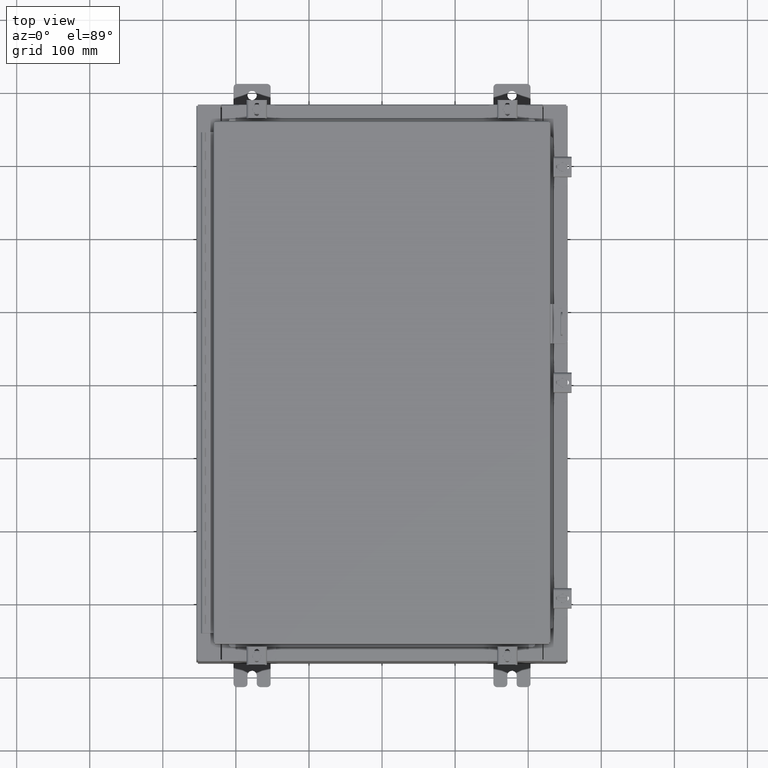
[diagram: clean part render]
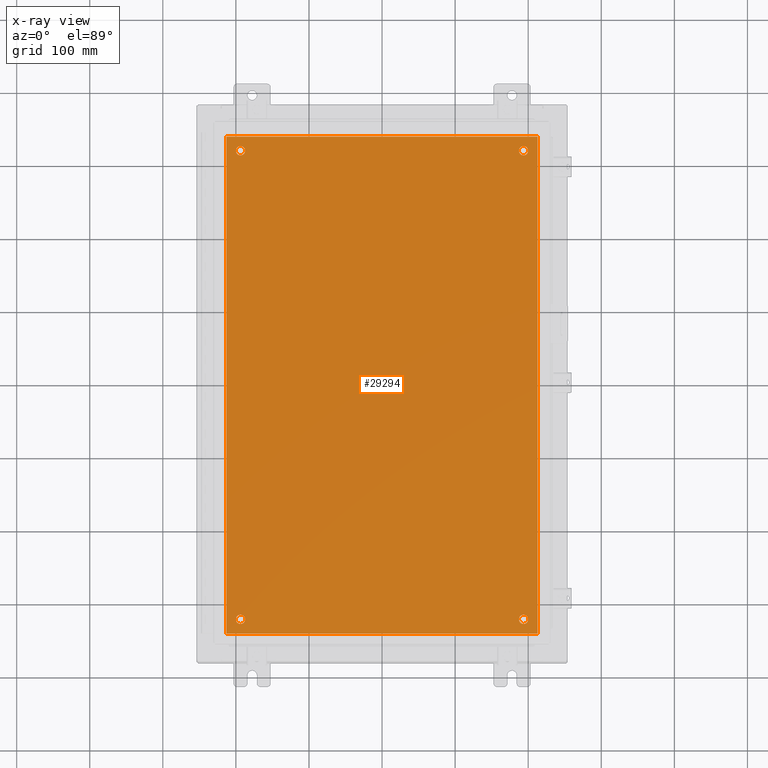
[diagram: x-ray — body ghosted, one internal face saturated and labeled with its STEP entity id]
A machine part, top view, then the same camera in x-ray: the body is ghosted and one INTERNAL B-rep face — a face not visible from any outside direction — is saturated and labeled: STEP entity #29294.
In plain terms, the highlighted planar face has unit normal (0, 0, -1).
Its self-contained STEP definition (entity closure, byte-faithful):
#529 = AXIS2_PLACEMENT_3D ( 'NONE', #18171, #18162, #18082 ) ;
#673 = DIRECTION ( 'NONE',  ( -1.000000000000000000, 0.0000000000000000000, -0.0000000000000000000 ) ) ;
#690 = EDGE_CURVE ( 'NONE', #12783, #30002, #31146, .T. ) ;
#717 = DIRECTION ( 'NONE',  ( 0.0000000000000000000, 0.0000000000000000000, -1.000000000000000000 ) ) ;
#759 = PLANE ( 'NONE',  #5560 ) ;
#770 = CARTESIAN_POINT ( 'NONE',  ( 0.0000000000000000000, 0.0000000000000000000, -0.1039999999999999800 ) ) ;
#806 = AXIS2_PLACEMENT_3D ( 'NONE', #29410, #17889, #17842 ) ;
#902 = EDGE_LOOP ( 'NONE', ( #34099, #13166 ) ) ;
#1223 = VERTEX_POINT ( 'NONE', #36866 ) ;
#1288 = CARTESIAN_POINT ( 'NONE',  ( 7.875000000000001800, 12.62500000000000200, -0.1039999999999999800 ) ) ;
#1823 = CARTESIAN_POINT ( 'NONE',  ( 7.875000000000001800, -12.62500000000000200, -0.1039999999999999800 ) ) ;
#1919 = CIRCLE ( 'NONE', #806, 0.2499999999999987000 ) ;
#1987 = EDGE_LOOP ( 'NONE', ( #2443, #22262, #36931, #14598 ) ) ;
#2052 = EDGE_CURVE ( 'NONE', #27027, #2546, #3927, .T. ) ;
#2219 = AXIS2_PLACEMENT_3D ( 'NONE', #3190, #3322, #3439 ) ;
#2351 = CARTESIAN_POINT ( 'NONE',  ( -7.375000000000003600, 12.62500000000000200, -0.1039999999999999800 ) ) ;
#2443 = ORIENTED_EDGE ( 'NONE', *, *, #20037, .F. ) ;
#2546 = VERTEX_POINT ( 'NONE', #2351 ) ;
#2873 = VERTEX_POINT ( 'NONE', #32726 ) ;
#3190 = CARTESIAN_POINT ( 'NONE',  ( -7.625000000000002700, -12.62500000000000200, -0.1039999999999999800 ) ) ;
#3322 = DIRECTION ( 'NONE',  ( -0.0000000000000000000, -0.0000000000000000000, 1.000000000000000000 ) ) ;
#3439 = DIRECTION ( 'NONE',  ( -1.000000000000000000, 0.0000000000000000000, 0.0000000000000000000 ) ) ;
#3673 = ORIENTED_EDGE ( 'NONE', *, *, #690, .T. ) ;
#3927 = CIRCLE ( 'NONE', #529, 0.2499999999999998100 ) ;
#4083 = FACE_BOUND ( 'NONE', #6073, .T. ) ;
#4132 = ORIENTED_EDGE ( 'NONE', *, *, #33070, .T. ) ;
#5560 = AXIS2_PLACEMENT_3D ( 'NONE', #770, #717, #673 ) ;
#5797 = CIRCLE ( 'NONE', #20526, 0.2499999999999987000 ) ;
#6073 = EDGE_LOOP ( 'NONE', ( #29422, #9054 ) ) ;
#6400 = LINE ( 'NONE', #15677, #37238 ) ;
#6557 = EDGE_CURVE ( 'NONE', #20621, #11350, #1919, .T. ) ;
#6643 = VERTEX_POINT ( 'NONE', #13054 ) ;
#7862 = CIRCLE ( 'NONE', #27215, 0.2499999999999987000 ) ;
#8423 = LINE ( 'NONE', #21989, #30608 ) ;
#9054 = ORIENTED_EDGE ( 'NONE', *, *, #6557, .T. ) ;
#10673 = AXIS2_PLACEMENT_3D ( 'NONE', #35686, #35418, #35340 ) ;
#10768 = FACE_BOUND ( 'NONE', #902, .T. ) ;
#11219 = DIRECTION ( 'NONE',  ( -1.000000000000000000, 0.0000000000000000000, 0.0000000000000000000 ) ) ;
#11249 = DIRECTION ( 'NONE',  ( -0.0000000000000000000, -0.0000000000000000000, 1.000000000000000000 ) ) ;
#11255 = CARTESIAN_POINT ( 'NONE',  ( -7.625000000000002700, -12.62500000000000200, -0.1039999999999999800 ) ) ;
#11350 = VERTEX_POINT ( 'NONE', #1823 ) ;
#11370 = VERTEX_POINT ( 'NONE', #1288 ) ;
#12607 = ORIENTED_EDGE ( 'NONE', *, *, #13303, .T. ) ;
#12783 = VERTEX_POINT ( 'NONE', #23053 ) ;
#13054 = CARTESIAN_POINT ( 'NONE',  ( -8.383000000000000900, -13.38299999999999400, -0.1040000000000009100 ) ) ;
#13166 = ORIENTED_EDGE ( 'NONE', *, *, #2052, .T. ) ;
#13303 = EDGE_CURVE ( 'NONE', #30002, #12783, #33866, .T. ) ;
#13989 = DIRECTION ( 'NONE',  ( -1.000000000000000000, -0.0000000000000000000, -0.0000000000000000000 ) ) ;
#14598 = ORIENTED_EDGE ( 'NONE', *, *, #28502, .F. ) ;
#15548 = DIRECTION ( 'NONE',  ( 0.0000000000000000000, 1.000000000000000000, 0.0000000000000000000 ) ) ;
#15677 = CARTESIAN_POINT ( 'NONE',  ( 8.383000000000002700, -13.38299999999999200, -0.1039999999999992700 ) ) ;
#16322 = CARTESIAN_POINT ( 'NONE',  ( -7.875000000000002700, 12.62500000000000200, -0.1039999999999999800 ) ) ;
#16354 = DIRECTION ( 'NONE',  ( -1.000000000000000000, 0.0000000000000000000, 0.0000000000000000000 ) ) ;
#16411 = LINE ( 'NONE', #22279, #22334 ) ;
#17842 = DIRECTION ( 'NONE',  ( -1.000000000000000000, 0.0000000000000000000, 0.0000000000000000000 ) ) ;
#17889 = DIRECTION ( 'NONE',  ( -0.0000000000000000000, -0.0000000000000000000, 1.000000000000000000 ) ) ;
#18045 = EDGE_CURVE ( 'NONE', #2546, #27027, #32996, .T. ) ;
#18082 = DIRECTION ( 'NONE',  ( -1.000000000000000000, 0.0000000000000000000, 0.0000000000000000000 ) ) ;
#18162 = DIRECTION ( 'NONE',  ( -0.0000000000000000000, -0.0000000000000000000, 1.000000000000000000 ) ) ;
#18171 = CARTESIAN_POINT ( 'NONE',  ( -7.625000000000002700, 12.62500000000000200, -0.1039999999999999800 ) ) ;
#18249 = VERTEX_POINT ( 'NONE', #20832 ) ;
#18486 = FACE_BOUND ( 'NONE', #24531, .T. ) ;
#18730 = CARTESIAN_POINT ( 'NONE',  ( -7.375000000000003600, -12.62500000000000200, -0.1039999999999999800 ) ) ;
#19379 = FACE_OUTER_BOUND ( 'NONE', #1987, .T. ) ;
#20037 = EDGE_CURVE ( 'NONE', #6643, #21629, #16411, .T. ) ;
#20526 = AXIS2_PLACEMENT_3D ( 'NONE', #33838, #36781, #16354 ) ;
#20621 = VERTEX_POINT ( 'NONE', #32587 ) ;
#20832 = CARTESIAN_POINT ( 'NONE',  ( 8.383000000000002700, 13.38300000000000100, -0.1039999999999992700 ) ) ;
#21629 = VERTEX_POINT ( 'NONE', #27639 ) ;
#21989 = CARTESIAN_POINT ( 'NONE',  ( -8.383000000000000900, 13.38300000000000100, -0.1039999999999998300 ) ) ;
#22262 = ORIENTED_EDGE ( 'NONE', *, *, #34696, .F. ) ;
#22279 = CARTESIAN_POINT ( 'NONE',  ( -8.500000000000000000, -13.38299999999999400, -0.1040000000000009100 ) ) ;
#22334 = VECTOR ( 'NONE', #25757, 39.37007874015748100 ) ;
#23053 = CARTESIAN_POINT ( 'NONE',  ( -7.875000000000002700, -12.62500000000000200, -0.1039999999999999800 ) ) ;
#24261 = DIRECTION ( 'NONE',  ( -1.000000000000000000, 0.0000000000000000000, 0.0000000000000000000 ) ) ;
#24305 = DIRECTION ( 'NONE',  ( -0.0000000000000000000, -0.0000000000000000000, 1.000000000000000000 ) ) ;
#24358 = CARTESIAN_POINT ( 'NONE',  ( -7.625000000000002700, 12.62500000000000200, -0.1039999999999999800 ) ) ;
#24531 = EDGE_LOOP ( 'NONE', ( #4132, #26353 ) ) ;
#24564 = VECTOR ( 'NONE', #13989, 39.37007874015748100 ) ;
#25535 = DIRECTION ( 'NONE',  ( -1.000000000000000000, 0.0000000000000000000, 0.0000000000000000000 ) ) ;
#25569 = DIRECTION ( 'NONE',  ( -0.0000000000000000000, -0.0000000000000000000, 1.000000000000000000 ) ) ;
#25613 = CARTESIAN_POINT ( 'NONE',  ( 7.625000000000002700, 12.62500000000000200, -0.1039999999999999800 ) ) ;
#25757 = DIRECTION ( 'NONE',  ( 1.000000000000000000, -0.0000000000000000000, -0.0000000000000000000 ) ) ;
#25975 = AXIS2_PLACEMENT_3D ( 'NONE', #24358, #24305, #24261 ) ;
#26190 = FACE_BOUND ( 'NONE', #27450, .T. ) ;
#26213 = EDGE_CURVE ( 'NONE', #18249, #2873, #32314, .T. ) ;
#26353 = ORIENTED_EDGE ( 'NONE', *, *, #37422, .T. ) ;
#26626 = EDGE_CURVE ( 'NONE', #11350, #20621, #27263, .T. ) ;
#27027 = VERTEX_POINT ( 'NONE', #16322 ) ;
#27215 = AXIS2_PLACEMENT_3D ( 'NONE', #25613, #25569, #25535 ) ;
#27263 = CIRCLE ( 'NONE', #10673, 0.2499999999999987000 ) ;
#27450 = EDGE_LOOP ( 'NONE', ( #12607, #3673 ) ) ;
#27639 = CARTESIAN_POINT ( 'NONE',  ( 8.383000000000002700, -13.38299999999999200, -0.1039999999999992700 ) ) ;
#28502 = EDGE_CURVE ( 'NONE', #21629, #18249, #6400, .T. ) ;
#29294 = ADVANCED_FACE ( 'NONE', ( #26190, #4083, #18486, #10768, #19379 ), #759, .T. ) ;
#29410 = CARTESIAN_POINT ( 'NONE',  ( 7.625000000000002700, -12.62500000000000200, -0.1039999999999999800 ) ) ;
#29422 = ORIENTED_EDGE ( 'NONE', *, *, #26626, .T. ) ;
#30002 = VERTEX_POINT ( 'NONE', #18730 ) ;
#30079 = CARTESIAN_POINT ( 'NONE',  ( 8.500000000000001800, 13.38300000000000300, -0.1040000000000009100 ) ) ;
#30608 = VECTOR ( 'NONE', #33738, 39.37007874015748100 ) ;
#31146 = CIRCLE ( 'NONE', #2219, 0.2499999999999998100 ) ;
#32314 = LINE ( 'NONE', #30079, #24564 ) ;
#32587 = CARTESIAN_POINT ( 'NONE',  ( 7.375000000000004400, -12.62500000000000200, -0.1039999999999999800 ) ) ;
#32726 = CARTESIAN_POINT ( 'NONE',  ( -8.383000000000000900, 13.38300000000000100, -0.1039999999999998300 ) ) ;
#32996 = CIRCLE ( 'NONE', #25975, 0.2499999999999998100 ) ;
#33070 = EDGE_CURVE ( 'NONE', #11370, #1223, #7862, .T. ) ;
#33738 = DIRECTION ( 'NONE',  ( 0.0000000000000000000, -1.000000000000000000, 0.0000000000000000000 ) ) ;
#33838 = CARTESIAN_POINT ( 'NONE',  ( 7.625000000000002700, 12.62500000000000200, -0.1039999999999999800 ) ) ;
#33866 = CIRCLE ( 'NONE', #34467, 0.2499999999999998100 ) ;
#34099 = ORIENTED_EDGE ( 'NONE', *, *, #18045, .T. ) ;
#34467 = AXIS2_PLACEMENT_3D ( 'NONE', #11255, #11249, #11219 ) ;
#34696 = EDGE_CURVE ( 'NONE', #2873, #6643, #8423, .T. ) ;
#35340 = DIRECTION ( 'NONE',  ( -1.000000000000000000, 0.0000000000000000000, 0.0000000000000000000 ) ) ;
#35418 = DIRECTION ( 'NONE',  ( -0.0000000000000000000, -0.0000000000000000000, 1.000000000000000000 ) ) ;
#35686 = CARTESIAN_POINT ( 'NONE',  ( 7.625000000000002700, -12.62500000000000200, -0.1039999999999999800 ) ) ;
#36781 = DIRECTION ( 'NONE',  ( -0.0000000000000000000, -0.0000000000000000000, 1.000000000000000000 ) ) ;
#36866 = CARTESIAN_POINT ( 'NONE',  ( 7.375000000000004400, 12.62500000000000200, -0.1039999999999999800 ) ) ;
#36931 = ORIENTED_EDGE ( 'NONE', *, *, #26213, .F. ) ;
#37238 = VECTOR ( 'NONE', #15548, 39.37007874015748100 ) ;
#37422 = EDGE_CURVE ( 'NONE', #1223, #11370, #5797, .T. ) ;